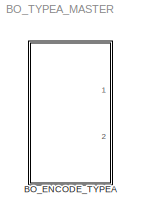
MODEL BO_TYPEA_MASTER
KIND library
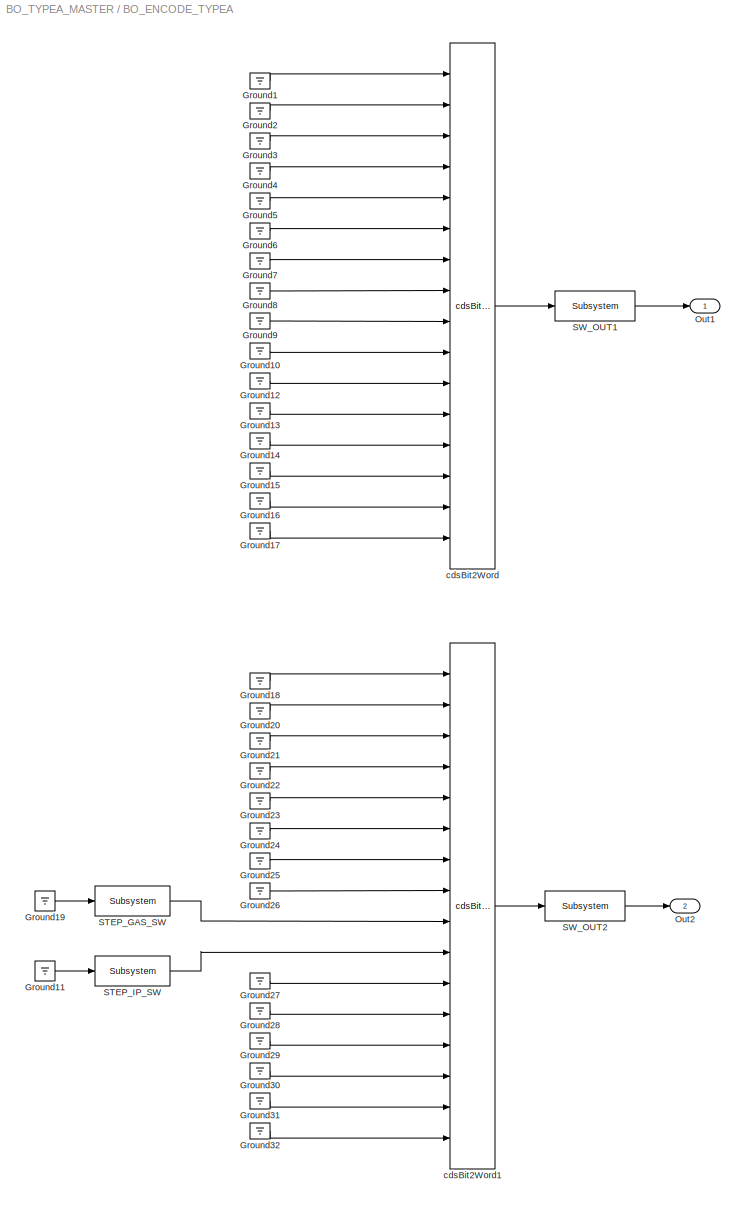
BLOCK [SubSystem] BO_ENCODE_TYPEA
  Ports = [0, 2]
  RequestExecContextInheritance = off
  SID = 1
BLOCK [Ground] BO_ENCODE_TYPEA/Ground1
  SID = 73
BLOCK [Ground] BO_ENCODE_TYPEA/Ground10
  SID = 82
BLOCK [Ground] BO_ENCODE_TYPEA/Ground11
  SID = 40
BLOCK [Ground] BO_ENCODE_TYPEA/Ground12
  SID = 83
BLOCK [Ground] BO_ENCODE_TYPEA/Ground13
  SID = 84
BLOCK [Ground] BO_ENCODE_TYPEA/Ground14
  SID = 85
BLOCK [Ground] BO_ENCODE_TYPEA/Ground15
  SID = 86
BLOCK [Ground] BO_ENCODE_TYPEA/Ground16
  SID = 87
BLOCK [Ground] BO_ENCODE_TYPEA/Ground17
  SID = 88
BLOCK [Ground] BO_ENCODE_TYPEA/Ground18
  SID = 89
BLOCK [Ground] BO_ENCODE_TYPEA/Ground19
  SID = 11
BLOCK [Ground] BO_ENCODE_TYPEA/Ground2
  SID = 74
BLOCK [Ground] BO_ENCODE_TYPEA/Ground20
  SID = 90
BLOCK [Ground] BO_ENCODE_TYPEA/Ground21
  SID = 91
BLOCK [Ground] BO_ENCODE_TYPEA/Ground22
  SID = 92
BLOCK [Ground] BO_ENCODE_TYPEA/Ground23
  SID = 93
BLOCK [Ground] BO_ENCODE_TYPEA/Ground24
  SID = 94
BLOCK [Ground] BO_ENCODE_TYPEA/Ground25
  SID = 95
BLOCK [Ground] BO_ENCODE_TYPEA/Ground26
  SID = 96
BLOCK [Ground] BO_ENCODE_TYPEA/Ground27
  SID = 97
BLOCK [Ground] BO_ENCODE_TYPEA/Ground28
  SID = 98
BLOCK [Ground] BO_ENCODE_TYPEA/Ground29
  SID = 99
BLOCK [Ground] BO_ENCODE_TYPEA/Ground3
  SID = 75
BLOCK [Ground] BO_ENCODE_TYPEA/Ground30
  SID = 100
BLOCK [Ground] BO_ENCODE_TYPEA/Ground31
  SID = 101
BLOCK [Ground] BO_ENCODE_TYPEA/Ground32
  SID = 102
BLOCK [Ground] BO_ENCODE_TYPEA/Ground4
  SID = 76
BLOCK [Ground] BO_ENCODE_TYPEA/Ground5
  SID = 77
BLOCK [Ground] BO_ENCODE_TYPEA/Ground6
  SID = 78
BLOCK [Ground] BO_ENCODE_TYPEA/Ground7
  SID = 79
BLOCK [Ground] BO_ENCODE_TYPEA/Ground8
  SID = 80
BLOCK [Ground] BO_ENCODE_TYPEA/Ground9
  SID = 81
BLOCK [Outport] BO_ENCODE_TYPEA/Out1
  IconDisplay = Port number
  SID = 37
BLOCK [Outport] BO_ENCODE_TYPEA/Out2
  IconDisplay = Port number
  Port = 2
  SID = 38
BLOCK [Reference] BO_ENCODE_TYPEA/STEP_GAS_SW  REF=cdsEpicsBinIn/Subsystem
  AttributesFormatString = %<Tag>
  Description = Purpose:                                                                            \nCreate an EPICS binary (0 or 1) input channel to the FE realtime controls.          \n                                                                                    \nOperation:                                                                          \nOutputs value from an EPICS ai record. Value is binary i...<+252ch>
  Ports = [1, 1]
  SID = 34
  SourceBlock = cdsEpicsBinIn/Subsystem
  SourceType = SubSystem
  Tag = cdsEpicsBinIn
BLOCK [Reference] BO_ENCODE_TYPEA/STEP_IP_SW  REF=cdsEpicsBinIn/Subsystem
  AttributesFormatString = %<Tag>
  Description = Purpose:                                                                            \nCreate an EPICS binary (0 or 1) input channel to the FE realtime controls.          \n                                                                                    \nOperation:                                                                          \nOutputs value from an EPICS ai record. Value is binary i...<+252ch>
  Ports = [1, 1]
  SID = 39
  SourceBlock = cdsEpicsBinIn/Subsystem
  SourceType = SubSystem
  Tag = cdsEpicsBinIn
BLOCK [Reference] BO_ENCODE_TYPEA/SW_OUT1  REF=cdsEpicsOut/Subsystem
  AttributesFormatString = %<Tag>
  Description = Purpose:                                          \nOutput a FE signal to an EPICS channel.           \n                                                  \nOperation:                                        \nTakes input value and passes it to EPICS record.  \n                                                  \nUsage:                                            \nName the part with the desired EPICS...<+14ch>
  Ports = [1, 1]
  SID = 105
  SourceBlock = cdsEpicsOut/Subsystem
  SourceType = SubSystem
  Tag = cdsEpicsOutput
BLOCK [Reference] BO_ENCODE_TYPEA/SW_OUT2  REF=cdsEpicsOut/Subsystem
  AttributesFormatString = %<Tag>
  Description = Purpose:                                          \nOutput a FE signal to an EPICS channel.           \n                                                  \nOperation:                                        \nTakes input value and passes it to EPICS record.  \n                                                  \nUsage:                                            \nName the part with the desired EPICS...<+14ch>
  Ports = [1, 1]
  SID = 106
  SourceBlock = cdsEpicsOut/Subsystem
  SourceType = SubSystem
  Tag = cdsEpicsOutput
BLOCK [Reference] BO_ENCODE_TYPEA/cdsBit2Word  REF=cdsBit2Word/cdsBit2Word
  AttributesFormatString = %<Tag>
  Description = Forms single 16 bit integer from 16 0/1 inputs.
  Ports = [16, 1]
  SID = 35
  SourceBlock = cdsBit2Word/cdsBit2Word
  SourceType = SubSystem
  Tag = cdsBit2Word
BLOCK [Reference] BO_ENCODE_TYPEA/cdsBit2Word1  REF=cdsBit2Word/cdsBit2Word
  AttributesFormatString = %<Tag>
  Description = Forms single 16 bit integer from 16 0/1 inputs.
  Ports = [16, 1]
  SID = 36
  SourceBlock = cdsBit2Word/cdsBit2Word
  SourceType = SubSystem
  Tag = cdsBit2Word
LINE BO_ENCODE_TYPEA/Ground10:1 -> BO_ENCODE_TYPEA/cdsBit2Word:10
LINE BO_ENCODE_TYPEA/Ground11:1 -> BO_ENCODE_TYPEA/STEP_IP_SW:1
LINE BO_ENCODE_TYPEA/Ground12:1 -> BO_ENCODE_TYPEA/cdsBit2Word:11
LINE BO_ENCODE_TYPEA/Ground13:1 -> BO_ENCODE_TYPEA/cdsBit2Word:12
LINE BO_ENCODE_TYPEA/Ground14:1 -> BO_ENCODE_TYPEA/cdsBit2Word:13
LINE BO_ENCODE_TYPEA/Ground15:1 -> BO_ENCODE_TYPEA/cdsBit2Word:14
LINE BO_ENCODE_TYPEA/Ground16:1 -> BO_ENCODE_TYPEA/cdsBit2Word:15
LINE BO_ENCODE_TYPEA/Ground17:1 -> BO_ENCODE_TYPEA/cdsBit2Word:16
LINE BO_ENCODE_TYPEA/Ground18:1 -> BO_ENCODE_TYPEA/cdsBit2Word1:1
LINE BO_ENCODE_TYPEA/Ground19:1 -> BO_ENCODE_TYPEA/STEP_GAS_SW:1
LINE BO_ENCODE_TYPEA/Ground1:1 -> BO_ENCODE_TYPEA/cdsBit2Word:1
LINE BO_ENCODE_TYPEA/Ground20:1 -> BO_ENCODE_TYPEA/cdsBit2Word1:2
LINE BO_ENCODE_TYPEA/Ground21:1 -> BO_ENCODE_TYPEA/cdsBit2Word1:3
LINE BO_ENCODE_TYPEA/Ground22:1 -> BO_ENCODE_TYPEA/cdsBit2Word1:4
LINE BO_ENCODE_TYPEA/Ground23:1 -> BO_ENCODE_TYPEA/cdsBit2Word1:5
LINE BO_ENCODE_TYPEA/Ground24:1 -> BO_ENCODE_TYPEA/cdsBit2Word1:6
LINE BO_ENCODE_TYPEA/Ground25:1 -> BO_ENCODE_TYPEA/cdsBit2Word1:7
LINE BO_ENCODE_TYPEA/Ground26:1 -> BO_ENCODE_TYPEA/cdsBit2Word1:8
LINE BO_ENCODE_TYPEA/Ground27:1 -> BO_ENCODE_TYPEA/cdsBit2Word1:11
LINE BO_ENCODE_TYPEA/Ground28:1 -> BO_ENCODE_TYPEA/cdsBit2Word1:12
LINE BO_ENCODE_TYPEA/Ground29:1 -> BO_ENCODE_TYPEA/cdsBit2Word1:13
LINE BO_ENCODE_TYPEA/Ground2:1 -> BO_ENCODE_TYPEA/cdsBit2Word:2
LINE BO_ENCODE_TYPEA/Ground30:1 -> BO_ENCODE_TYPEA/cdsBit2Word1:14
LINE BO_ENCODE_TYPEA/Ground31:1 -> BO_ENCODE_TYPEA/cdsBit2Word1:15
LINE BO_ENCODE_TYPEA/Ground32:1 -> BO_ENCODE_TYPEA/cdsBit2Word1:16
LINE BO_ENCODE_TYPEA/Ground3:1 -> BO_ENCODE_TYPEA/cdsBit2Word:3
LINE BO_ENCODE_TYPEA/Ground4:1 -> BO_ENCODE_TYPEA/cdsBit2Word:4
LINE BO_ENCODE_TYPEA/Ground5:1 -> BO_ENCODE_TYPEA/cdsBit2Word:5
LINE BO_ENCODE_TYPEA/Ground6:1 -> BO_ENCODE_TYPEA/cdsBit2Word:6
LINE BO_ENCODE_TYPEA/Ground7:1 -> BO_ENCODE_TYPEA/cdsBit2Word:7
LINE BO_ENCODE_TYPEA/Ground8:1 -> BO_ENCODE_TYPEA/cdsBit2Word:8
LINE BO_ENCODE_TYPEA/Ground9:1 -> BO_ENCODE_TYPEA/cdsBit2Word:9
LINE BO_ENCODE_TYPEA/STEP_GAS_SW:1 -> BO_ENCODE_TYPEA/cdsBit2Word1:9
LINE BO_ENCODE_TYPEA/STEP_IP_SW:1 -> BO_ENCODE_TYPEA/cdsBit2Word1:10
LINE BO_ENCODE_TYPEA/SW_OUT1:1 -> BO_ENCODE_TYPEA/Out1:1
LINE BO_ENCODE_TYPEA/SW_OUT2:1 -> BO_ENCODE_TYPEA/Out2:1
LINE BO_ENCODE_TYPEA/cdsBit2Word1:1 -> BO_ENCODE_TYPEA/SW_OUT2:1
LINE BO_ENCODE_TYPEA/cdsBit2Word:1 -> BO_ENCODE_TYPEA/SW_OUT1:1
